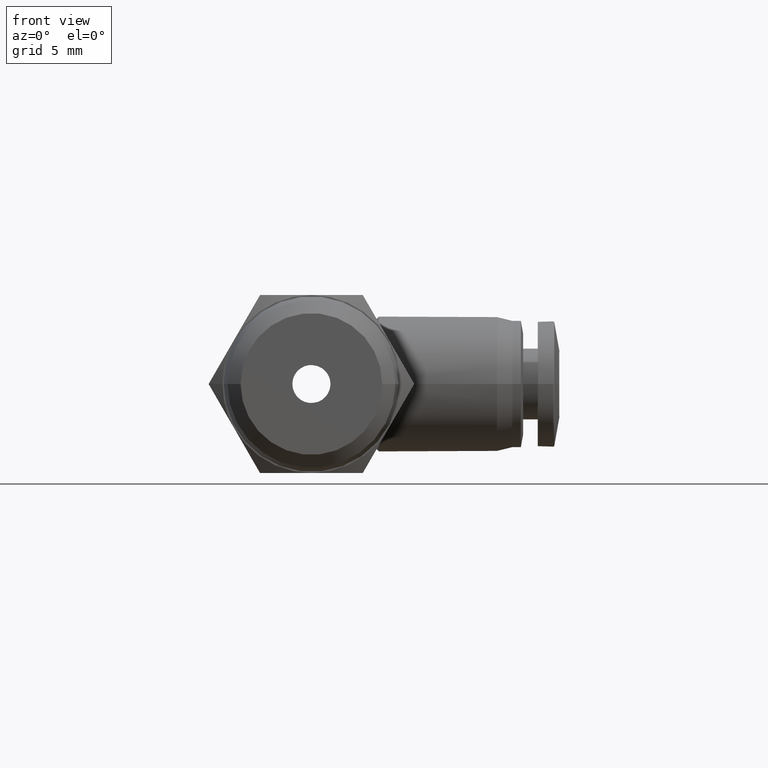
[diagram: clean part render]
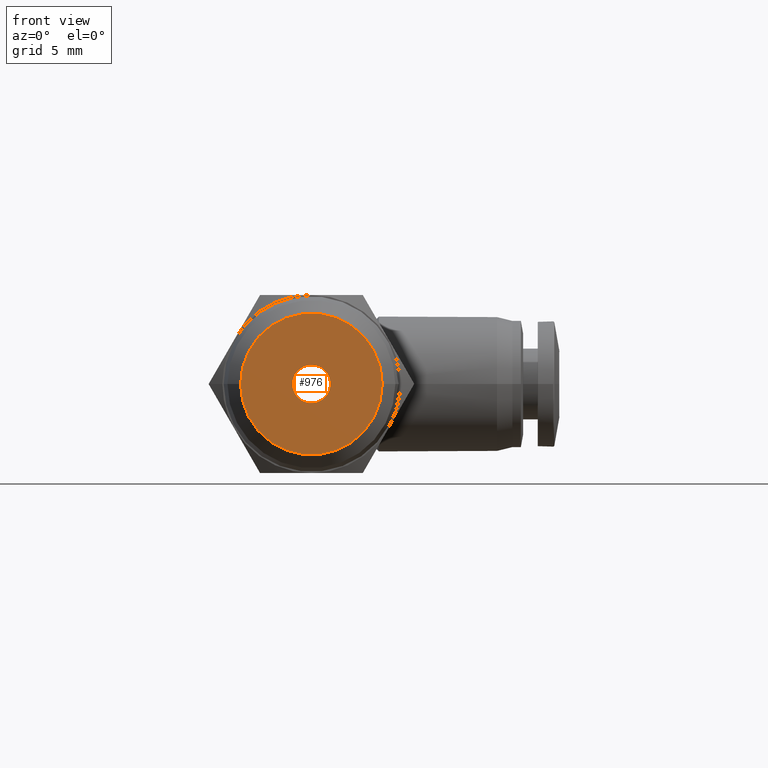
[diagram: same view with one face highlighted and labeled with its STEP entity id]
A machine part, front view. The second image highlights one B-rep face of the part: STEP entity #976.
In plain terms, the highlighted planar face has unit normal (0, -1, 0).
Its self-contained STEP definition (entity closure, byte-faithful):
#13 = CARTESIAN_POINT ( 'NONE',  ( -0.05905511810727918900, -0.6496062992123928800, 0.0000000000000000000 ) ) ;
#68 = CARTESIAN_POINT ( 'NONE',  ( 0.05905511811319326400, -0.6496062992118553100, 7.232166137065675000E-018 ) ) ;
#192 = EDGE_CURVE ( 'NONE', #2466, #1411, #689, .T. ) ;
#266 = AXIS2_PLACEMENT_3D ( 'NONE', #2314, #2253, #2291 ) ;
#503 = CARTESIAN_POINT ( 'NONE',  ( 2.957035342153278500E-012, -0.6496062992277763500, 5.169005907004989000E-018 ) ) ;
#583 = CIRCLE ( 'NONE', #3621, 0.2193645119116007800 ) ;
#643 = ORIENTED_EDGE ( 'NONE', *, *, #2966, .F. ) ;
#689 = CIRCLE ( 'NONE', #266, 0.05905511811023622700 ) ;
#751 = CARTESIAN_POINT ( 'NONE',  ( 2.957039763779527600E-012, -0.6496062992121240900, 0.0000000000000000000 ) ) ;
#890 = DIRECTION ( 'NONE',  ( 1.000000000000000000, 4.551913999999999600E-012, 0.0000000000000000000 ) ) ;
#944 = CARTESIAN_POINT ( 'NONE',  ( 2.957035342153278500E-012, -0.6496062992277763500, 5.169005907004989000E-018 ) ) ;
#954 = DIRECTION ( 'NONE',  ( -1.000000000000000000, -4.551740994854530200E-012, 0.0000000000000000000 ) ) ;
#976 = ADVANCED_FACE ( 'NONE', ( #4595, #3311 ), #1577, .T. ) ;
#1185 = DIRECTION ( 'NONE',  ( -1.000000000000000000, -4.551914400963141800E-012, 0.0000000000000000000 ) ) ;
#1380 = DIRECTION ( 'NONE',  ( -1.000000000000000000, -4.551740994854530200E-012, 0.0000000000000000000 ) ) ;
#1411 = VERTEX_POINT ( 'NONE', #68 ) ;
#1488 = CIRCLE ( 'NONE', #5090, 0.05905511811023622700 ) ;
#1577 = PLANE ( 'NONE',  #3901 ) ;
#1735 = CARTESIAN_POINT ( 'NONE',  ( -0.2193645119086437600, -0.6496062992287748900, 5.169005907004989000E-018 ) ) ;
#2253 = DIRECTION ( 'NONE',  ( -4.551913999999999600E-012, 1.000000000000000000, 0.0000000000000000000 ) ) ;
#2291 = DIRECTION ( 'NONE',  ( -1.000000000000000000, -4.551914400963141800E-012, 0.0000000000000000000 ) ) ;
#2314 = CARTESIAN_POINT ( 'NONE',  ( 2.957039763779527600E-012, -0.6496062992121240900, 0.0000000000000000000 ) ) ;
#2363 = VERTEX_POINT ( 'NONE', #1735 ) ;
#2370 = VERTEX_POINT ( 'NONE', #4528 ) ;
#2466 = VERTEX_POINT ( 'NONE', #13 ) ;
#2485 = DIRECTION ( 'NONE',  ( 4.551913999999999600E-012, -1.000000000000000000, 0.0000000000000000000 ) ) ;
#2627 = EDGE_LOOP ( 'NONE', ( #3453, #4033 ) ) ;
#2966 = EDGE_CURVE ( 'NONE', #2363, #2370, #3847, .T. ) ;
#3311 = FACE_OUTER_BOUND ( 'NONE', #4441, .T. ) ;
#3453 = ORIENTED_EDGE ( 'NONE', *, *, #192, .T. ) ;
#3483 = CARTESIAN_POINT ( 'NONE',  ( -0.1096822559446149200, -0.6496062992126233600, 0.0000000000000000000 ) ) ;
#3621 = AXIS2_PLACEMENT_3D ( 'NONE', #503, #3739, #954 ) ;
#3739 = DIRECTION ( 'NONE',  ( -4.551908870123265300E-012, 1.000000000000000000, -1.313568484723661800E-016 ) ) ;
#3847 = CIRCLE ( 'NONE', #5073, 0.2193645119116007800 ) ;
#3901 = AXIS2_PLACEMENT_3D ( 'NONE', #3483, #2485, #890 ) ;
#3979 = DIRECTION ( 'NONE',  ( -4.551913999999999600E-012, 1.000000000000000000, 0.0000000000000000000 ) ) ;
#3995 = ORIENTED_EDGE ( 'NONE', *, *, #5756, .F. ) ;
#4018 = EDGE_CURVE ( 'NONE', #1411, #2466, #1488, .T. ) ;
#4033 = ORIENTED_EDGE ( 'NONE', *, *, #4018, .T. ) ;
#4183 = DIRECTION ( 'NONE',  ( -4.551908870123265300E-012, 1.000000000000000000, -1.313568484723661800E-016 ) ) ;
#4441 = EDGE_LOOP ( 'NONE', ( #643, #3995 ) ) ;
#4528 = CARTESIAN_POINT ( 'NONE',  ( 0.2193645119145578000, -0.6496062992267778200, 3.193493179792064900E-017 ) ) ;
#4595 = FACE_BOUND ( 'NONE', #2627, .T. ) ;
#5073 = AXIS2_PLACEMENT_3D ( 'NONE', #944, #4183, #1380 ) ;
#5090 = AXIS2_PLACEMENT_3D ( 'NONE', #751, #3979, #1185 ) ;
#5756 = EDGE_CURVE ( 'NONE', #2370, #2363, #583, .T. ) ;